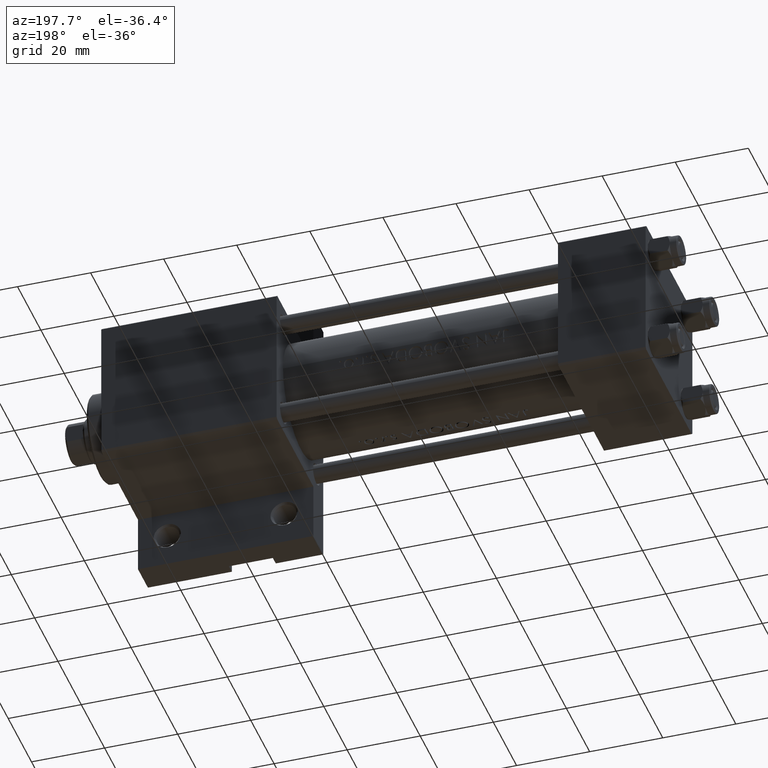
[diagram: clean part render]
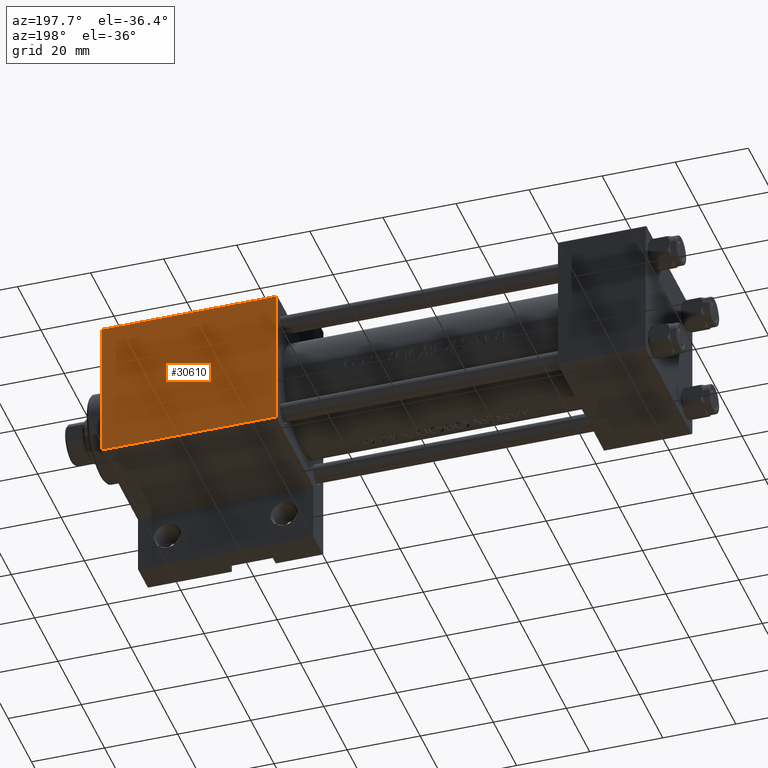
[diagram: same view with one face highlighted and labeled with its STEP entity id]
A machine part, auxiliary view. The second image highlights one B-rep face of the part: STEP entity #30610.
In plain terms, the highlighted planar face has unit normal (0, -1, -0).
Its self-contained STEP definition (entity closure, byte-faithful):
#2722 = DIRECTION ( 'NONE',  ( 0.000000000000000000, 1.000000000000000000, 8.673617379884034239E-17 ) ) ;
#5676 = LINE ( 'NONE', #12888, #20948 ) ;
#5992 = ORIENTED_EDGE ( 'NONE', *, *, #35925, .T. ) ;
#6328 = FACE_OUTER_BOUND ( 'NONE', #31846, .T. ) ;
#7006 = CARTESIAN_POINT ( 'NONE',  ( 149.0000000000000284, -19.50000000000000355, 19.99999999999999645 ) ) ;
#8501 = EDGE_CURVE ( 'NONE', #25758, #20301, #43151, .T. ) ;
#9231 = DIRECTION ( 'NONE',  ( -1.000000000000000000, 0.000000000000000000, 0.000000000000000000 ) ) ;
#9889 = VECTOR ( 'NONE', #18545, 1000.000000000000000 ) ;
#10257 = CARTESIAN_POINT ( 'NONE',  ( 149.0000000000000284, -19.50000000000000355, 19.99999999999999645 ) ) ;
#10958 = ORIENTED_EDGE ( 'NONE', *, *, #8501, .T. ) ;
#11171 = ORIENTED_EDGE ( 'NONE', *, *, #37071, .T. ) ;
#12432 = VECTOR ( 'NONE', #32511, 1000.000000000000000 ) ;
#12888 = CARTESIAN_POINT ( 'NONE',  ( 149.0000000000000284, 19.99999999999999645, 20.00000000000000000 ) ) ;
#13791 = CARTESIAN_POINT ( 'NONE',  ( 149.0000000000000284, 19.99999999999999645, 20.00000000000000000 ) ) ;
#16951 = VERTEX_POINT ( 'NONE', #28400 ) ;
#18545 = DIRECTION ( 'NONE',  ( 1.000000000000000000, 0.000000000000000000, 0.000000000000000000 ) ) ;
#19265 = CARTESIAN_POINT ( 'NONE',  ( 101.0000000000000000, -19.50000000000000355, 19.99999999999999645 ) ) ;
#19820 = ORIENTED_EDGE ( 'NONE', *, *, #35641, .F. ) ;
#19883 = DIRECTION ( 'NONE',  ( 0.000000000000000000, -1.000000000000000000, -8.673617379884035472E-17 ) ) ;
#20301 = VERTEX_POINT ( 'NONE', #10257 ) ;
#20948 = VECTOR ( 'NONE', #19883, 1000.000000000000000 ) ;
#21007 = DIRECTION ( 'NONE',  ( 0.000000000000000000, 8.673617379884034239E-17, -1.000000000000000000 ) ) ;
#22262 = VERTEX_POINT ( 'NONE', #42923 ) ;
#25758 = VERTEX_POINT ( 'NONE', #19265 ) ;
#28400 = CARTESIAN_POINT ( 'NONE',  ( 101.0000000000000000, 19.50000000000001066, 20.00000000000000000 ) ) ;
#29141 = CARTESIAN_POINT ( 'NONE',  ( 101.0000000000000000, 19.99999999999999645, 20.00000000000000000 ) ) ;
#30610 = ADVANCED_FACE ( 'NONE', ( #6328 ), #38633, .F. ) ;
#31846 = EDGE_LOOP ( 'NONE', ( #19820, #5992, #11171, #10958 ) ) ;
#32511 = DIRECTION ( 'NONE',  ( 0.000000000000000000, -1.000000000000000000, -8.673617379884035472E-17 ) ) ;
#35641 = EDGE_CURVE ( 'NONE', #22262, #20301, #5676, .T. ) ;
#35925 = EDGE_CURVE ( 'NONE', #22262, #16951, #46334, .T. ) ;
#36953 = AXIS2_PLACEMENT_3D ( 'NONE', #13791, #21007, #2722 ) ;
#37071 = EDGE_CURVE ( 'NONE', #16951, #25758, #42901, .T. ) ;
#38627 = CARTESIAN_POINT ( 'NONE',  ( 101.0000000000000000, 19.50000000000001066, 20.00000000000000000 ) ) ;
#38633 = PLANE ( 'NONE',  #36953 ) ;
#40217 = VECTOR ( 'NONE', #9231, 1000.000000000000000 ) ;
#42901 = LINE ( 'NONE', #29141, #12432 ) ;
#42923 = CARTESIAN_POINT ( 'NONE',  ( 149.0000000000000284, 19.50000000000001066, 20.00000000000000000 ) ) ;
#43151 = LINE ( 'NONE', #7006, #9889 ) ;
#46334 = LINE ( 'NONE', #38627, #40217 ) ;